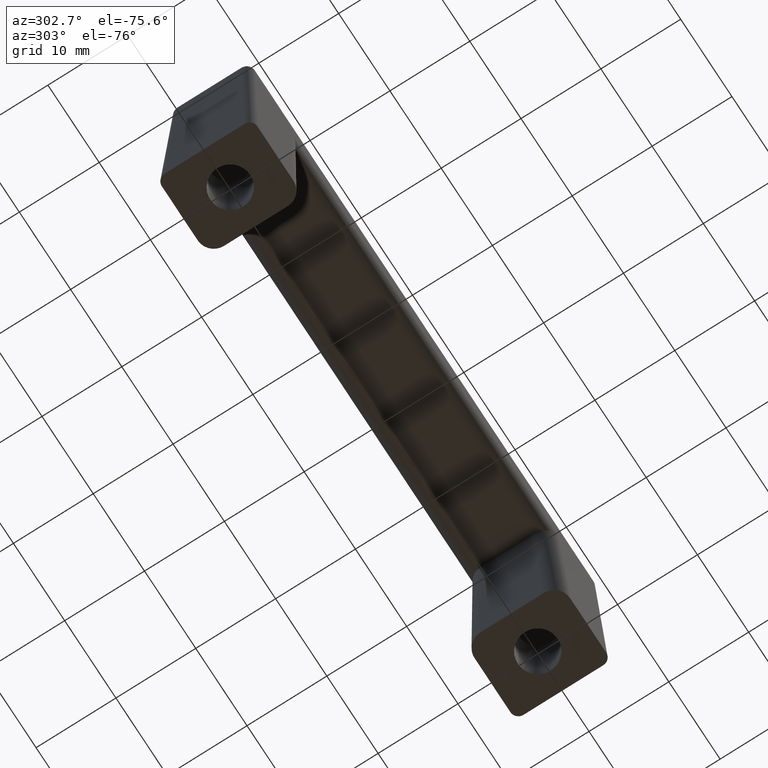
[diagram: clean part render]
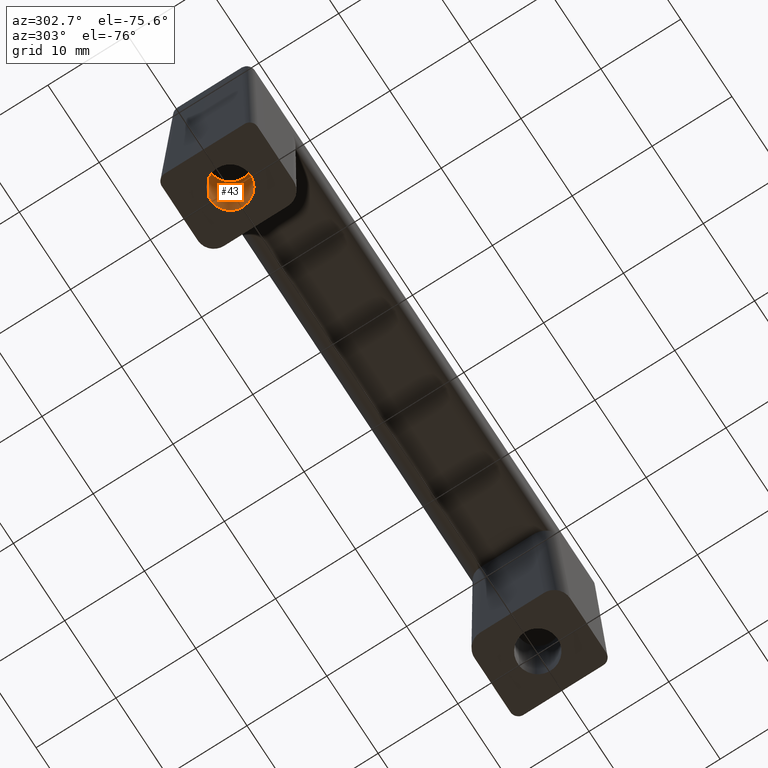
[diagram: same view with one face highlighted and labeled with its STEP entity id]
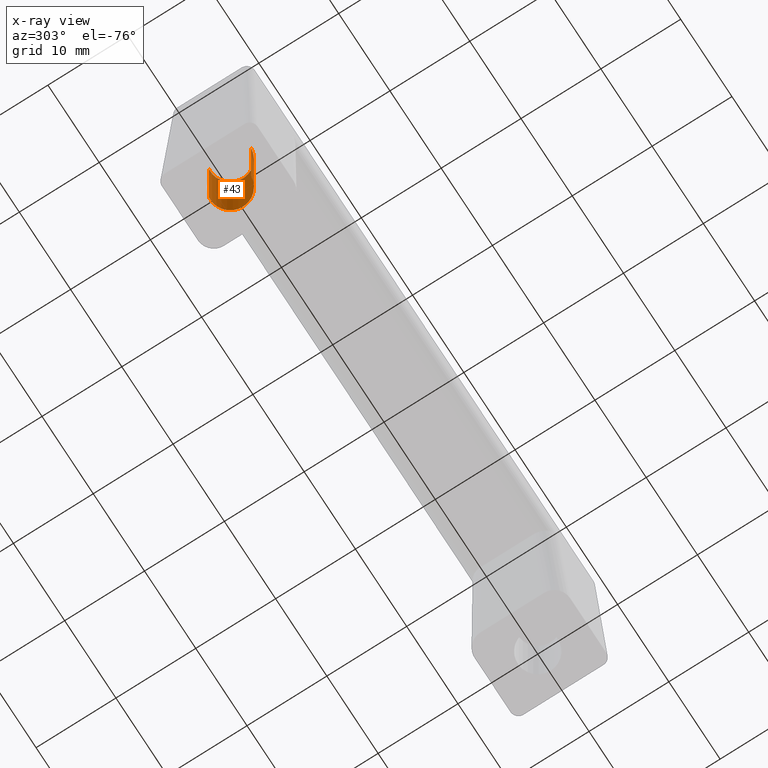
[diagram: x-ray of the same camera — body ghosted, the highlighted face saturated]
A machine part, auxiliary view. The second image highlights one B-rep face of the part: STEP entity #43.
The next image is the same camera in x-ray: the body ghosted, the highlighted face saturated — about 3% of this face is hidden behind the body in this view.
In plain terms, the highlighted face is a freeform B-spline surface patch.
Its self-contained STEP definition (entity closure, byte-faithful):
#43=ADVANCED_FACE('',(#105),#104,.F.);
#104=( BOUNDED_SURFACE() B_SPLINE_SURFACE( 2,1,((#443,#444),(#445,#446),(#447,#448),(#449,#450),(#451,#452),(#453,#454),(#455,#456),(#457,#458),(#459,#460)), .UNSPECIFIED.,.F.,.F.,.F.) B_SPLINE_SURFACE_WITH_KNOTS((3,1,2,2,1,3),(2,2),(0.00000000000E+00,4.22498097295E-02,2.07935234679E-01,4.35007085841E+00,8.49220648214E+00,8.53446173973E+00),(0.00000000000E+00,1.26075000000E+01), .UNSPECIFIED. ) GEOMETRIC_REPRESENTATION_ITEM() RATIONAL_B_SPLINE_SURFACE(((9.72008777434E-01,9.72008777434E-01),(9.74757289114E-01,9.74757289114E-01),(9.88284271247E-01,9.88284271247E-01),(1.00000000000E+00,1.00000000000E+00),(7.07106781187E-01,7.07106781187E-01),(1.00000000000E+00,1.00000000000E+00),(7.07106781187E-01,7.07106781187E-01),(1.00298789792E+00,1.00298789792E+00),(1.00597579584E+00,1.00597579584E+00))) REPRESENTATION_ITEM('') SURFACE() );
#105=FACE_OUTER_BOUND('',#461,.T.);
#443=CARTESIAN_POINT('',(-3.03319272031E+01,2.47814463133E+00,1.23000000000E+01));
#444=CARTESIAN_POINT('',(-3.03319272031E+01,2.47814463133E+00,-3.07500000000E-01));
#445=CARTESIAN_POINT('',(-3.03134544540E+01,2.48034039759E+00,1.23000000000E+01));
#446=CARTESIAN_POINT('',(-3.03134544540E+01,2.48034039759E+00,-3.07500000000E-01));
#447=CARTESIAN_POINT('',(-3.02240368216E+01,2.49096903862E+00,1.23000000000E+01));
#448=CARTESIAN_POINT('',(-3.02240368216E+01,2.49096903862E+00,-3.07500000000E-01));
#449=CARTESIAN_POINT('',(-3.01526213488E+01,2.49533699605E+00,1.23000000000E+01));
#450=CARTESIAN_POINT('',(-3.01526213488E+01,2.49533699605E+00,-3.07500000000E-01));
#451=CARTESIAN_POINT('',(-2.76572843528E+01,2.64795834489E+00,1.23000000000E+01));
#452=CARTESIAN_POINT('',(-2.76572843528E+01,2.64795834489E+00,-3.07500000000E-01));
#453=CARTESIAN_POINT('',(-2.75046630039E+01,1.52621348837E-01,1.23000000000E+01));
#454=CARTESIAN_POINT('',(-2.75046630039E+01,1.52621348837E-01,-3.07500000000E-01));
#455=CARTESIAN_POINT('',(-2.73520416551E+01,-2.34271564722E+00,1.23000000000E+01));
#456=CARTESIAN_POINT('',(-2.73520416551E+01,-2.34271564722E+00,-3.07500000000E-01));
#457=CARTESIAN_POINT('',(-2.98653249524E+01,-2.49643463886E+00,1.23000000000E+01));
#458=CARTESIAN_POINT('',(-2.98653249524E+01,-2.49643463886E+00,-3.07500000000E-01));
#459=CARTESIAN_POINT('',(-2.98831646473E+01,-2.49752576134E+00,1.23000000000E+01));
#460=CARTESIAN_POINT('',(-2.98831646473E+01,-2.49752576134E+00,-3.07500000000E-01));
#461=EDGE_LOOP('',(#661,#662,#663,#664));
#661=ORIENTED_EDGE('',*,*,#819,.F.);
#662=ORIENTED_EDGE('',*,*,#820,.T.);
#663=ORIENTED_EDGE('',*,*,#821,.T.);
#664=ORIENTED_EDGE('',*,*,#822,.F.);
#819=EDGE_CURVE('',#951,#952,#953,.T.);
#820=EDGE_CURVE('',#951,#959,#960,.T.);
#821=EDGE_CURVE('',#959,#966,#967,.T.);
#822=EDGE_CURVE('',#952,#966,#973,.T.);
#951=VERTEX_POINT('',#1458);
#952=VERTEX_POINT('',#1459);
#953=CIRCLE('',#1463,2.50000000000E+00);
#959=VERTEX_POINT('',#1464);
#960=LINE('',#1465,#1466);
#966=VERTEX_POINT('',#1468);
#967=CIRCLE('',#1472,2.50000000000E+00);
#973=LINE('',#1473,#1474);
#1458=CARTESIAN_POINT('',(-3.02950855867E+01,2.48252381590E+00,1.20000000000E+01));
#1459=CARTESIAN_POINT('',(-2.98473832926E+01,-2.49533727993E+00,1.20000000000E+01));
#1460=CARTESIAN_POINT('',(-3.00000000000E+01,-6.43929354283E-15,1.20000000000E+01));
#1461=DIRECTION('',(8.29020047375E-14,1.12852493927E-14,-1.00000000000E+00));
#1462=DIRECTION('',(-1.18034234682E-01,9.93009526361E-01,1.42108547152E-15));
#1463=AXIS2_PLACEMENT_3D('',#1460,#1461,#1462);
#1464=CARTESIAN_POINT('',(-3.02950855867E+01,2.48252381590E+00,-3.40731400000E-16));
#1465=CARTESIAN_POINT('',(-3.02950855867E+01,2.48252381590E+00,1.20000000000E+01));
#1466=VECTOR('',#1467,1.20000000000E+01);
#1467=DIRECTION('',(0.00000000000E+00,0.00000000000E+00,-1.00000000000E+00));
#1468=CARTESIAN_POINT('',(-2.98473832369E+01,-2.49533727652E+00,3.88578100000E-16));
#1469=CARTESIAN_POINT('',(-3.00000000000E+01,0.00000000000E+00,-5.11024536375E-16));
#1470=DIRECTION('',(2.27717422179E-15,3.39273453187E-16,-1.00000000000E+00));
#1471=DIRECTION('',(-1.18034234682E-01,9.93009526361E-01,6.81172545498E-17));
#1472=AXIS2_PLACEMENT_3D('',#1469,#1470,#1471);
#1473=CARTESIAN_POINT('',(-2.98473832926E+01,-2.49533727993E+00,1.20000000000E+01));
#1474=VECTOR('',#1475,1.20000000000E+01);
#1475=DIRECTION('',(4.64416001951E-09,2.84031835089E-10,-1.00000000000E+00));